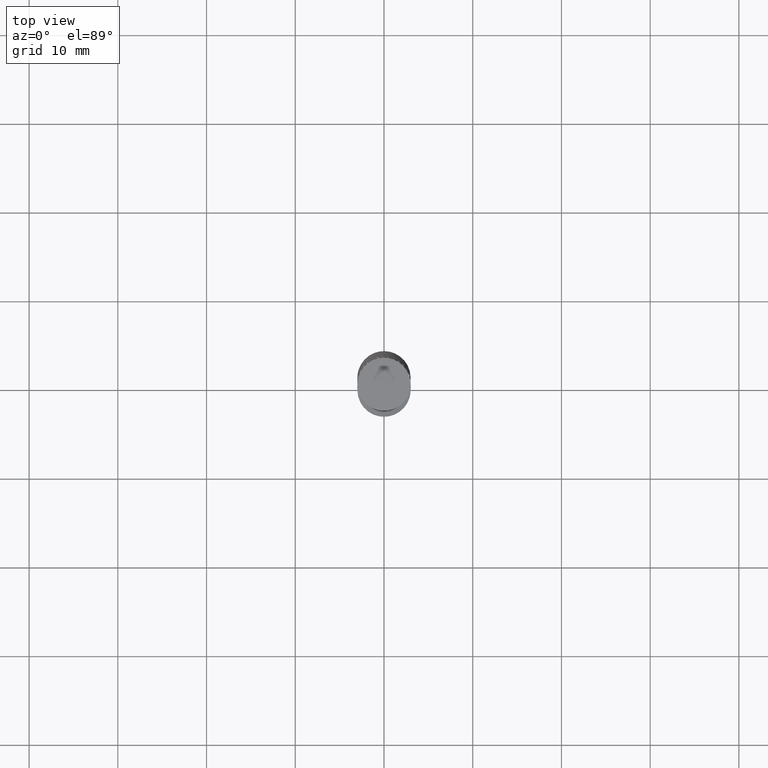
[diagram: clean part render]
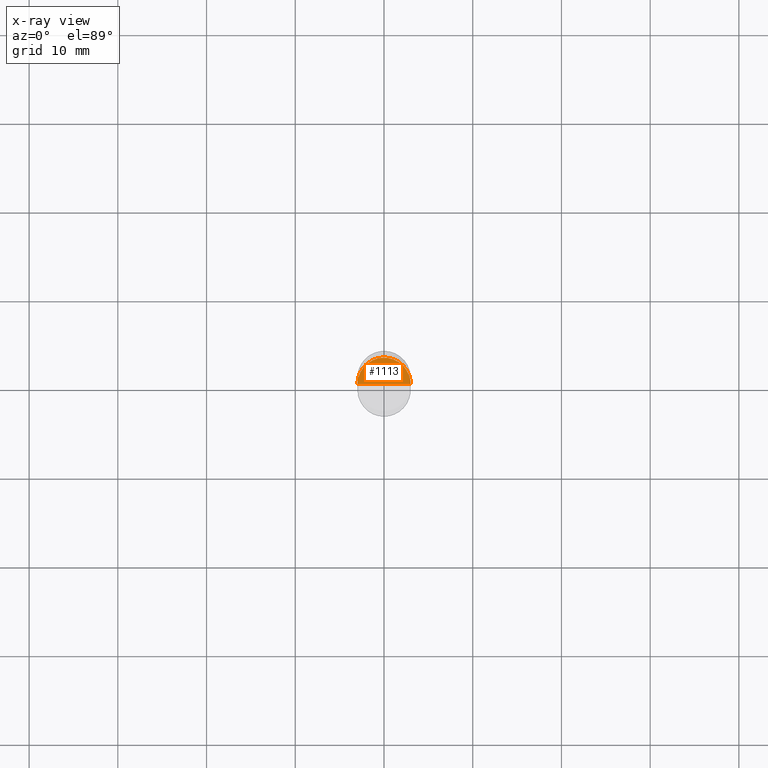
[diagram: x-ray — body ghosted, one internal face saturated and labeled with its STEP entity id]
A machine part, top view, then the same camera in x-ray: the body is ghosted and one INTERNAL B-rep face — a face not visible from any outside direction — is saturated and labeled: STEP entity #1113.
In plain terms, the highlighted face is a freeform B-spline surface patch.
Its self-contained STEP definition (entity closure, byte-faithful):
#1012=CARTESIAN_POINT('',(3.0,0.0,-7.0));
#1013=CARTESIAN_POINT('',(3.0,3.0,-7.0));
#1014=CARTESIAN_POINT('',(0.0,3.0,-7.0));
#1015=CARTESIAN_POINT('',(-3.0,3.0,-7.0));
#1016=CARTESIAN_POINT('',(-3.0,0.0,-7.0));
#1017=CARTESIAN_POINT('',(0.0,0.0,-7.0));
#1098=(
BOUNDED_SURFACE()
B_SPLINE_SURFACE(1,2,(
(#1012,#1013,#1014,#1015,#1016),
(#1017,#1017,#1017,#1017,#1017)
), .UNSPECIFIED.,.F.,.F.,.F.)
B_SPLINE_SURFACE_WITH_KNOTS((2,2),(3,2,3),(
0.0,1.0),(
0.0,0.5,1.0), .UNSPECIFIED.)
GEOMETRIC_REPRESENTATION_ITEM()
RATIONAL_B_SPLINE_SURFACE(((1.0,0.707106781187,1.0,0.707106781187,1.0),
(1.0,0.707106781187,1.0,0.707106781187,1.0)
))
REPRESENTATION_ITEM('')
SURFACE()
);
#1099=(
BOUNDED_CURVE()
B_SPLINE_CURVE(2,(#1016,#1015,#1014,#1013,#1012),.UNSPECIFIED.,.F.,.F.)
B_SPLINE_CURVE_WITH_KNOTS((3,2,3),
(0.0,0.5,1.0),.UNSPECIFIED.)
CURVE()
GEOMETRIC_REPRESENTATION_ITEM()
RATIONAL_B_SPLINE_CURVE((1.0,0.707106781187,1.0,0.707106781187,1.0))
REPRESENTATION_ITEM('')
);
#1100=(
BOUNDED_CURVE()
B_SPLINE_CURVE(1,(#1012,#1017),.UNSPECIFIED.,.F.,.F.)
B_SPLINE_CURVE_WITH_KNOTS((2,2),
(0.0,1.0),.UNSPECIFIED.)
CURVE()
GEOMETRIC_REPRESENTATION_ITEM()
RATIONAL_B_SPLINE_CURVE((1.0,1.0))
REPRESENTATION_ITEM('')
);
#1101=(
BOUNDED_CURVE()
B_SPLINE_CURVE(1,(#1017,#1016),.UNSPECIFIED.,.F.,.F.)
B_SPLINE_CURVE_WITH_KNOTS((2,2),
(0.0,1.0),.UNSPECIFIED.)
CURVE()
GEOMETRIC_REPRESENTATION_ITEM()
RATIONAL_B_SPLINE_CURVE((1.0,1.0))
REPRESENTATION_ITEM('')
);
#1102=VERTEX_POINT('',#1012);
#1103=VERTEX_POINT('',#1016);
#1104=VERTEX_POINT('',#1017);
#1105=EDGE_CURVE('',#1103,#1102,#1099,.T.);
#1106=EDGE_CURVE('',#1102,#1104,#1100,.T.);
#1107=EDGE_CURVE('',#1104,#1103,#1101,.T.);
#1108=ORIENTED_EDGE('',*,*,#1105,.T.);
#1109=ORIENTED_EDGE('',*,*,#1106,.T.);
#1110=ORIENTED_EDGE('',*,*,#1107,.T.);
#1111=EDGE_LOOP('',(#1108,#1109,#1110));
#1112=FACE_OUTER_BOUND('',#1111,.T.);
#1113=ADVANCED_FACE('',(#1112),#1098,.T.);